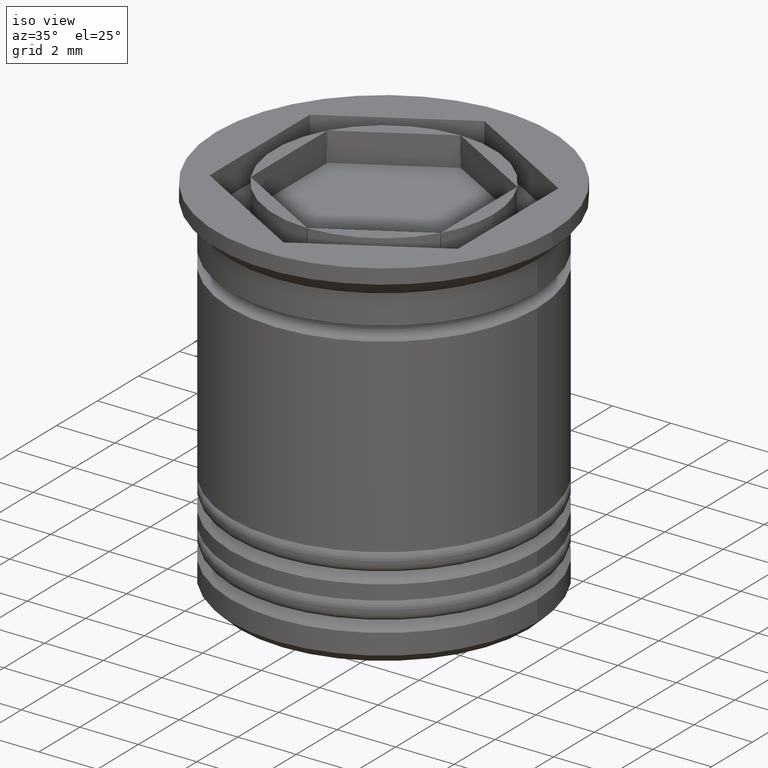
[diagram: clean part render]
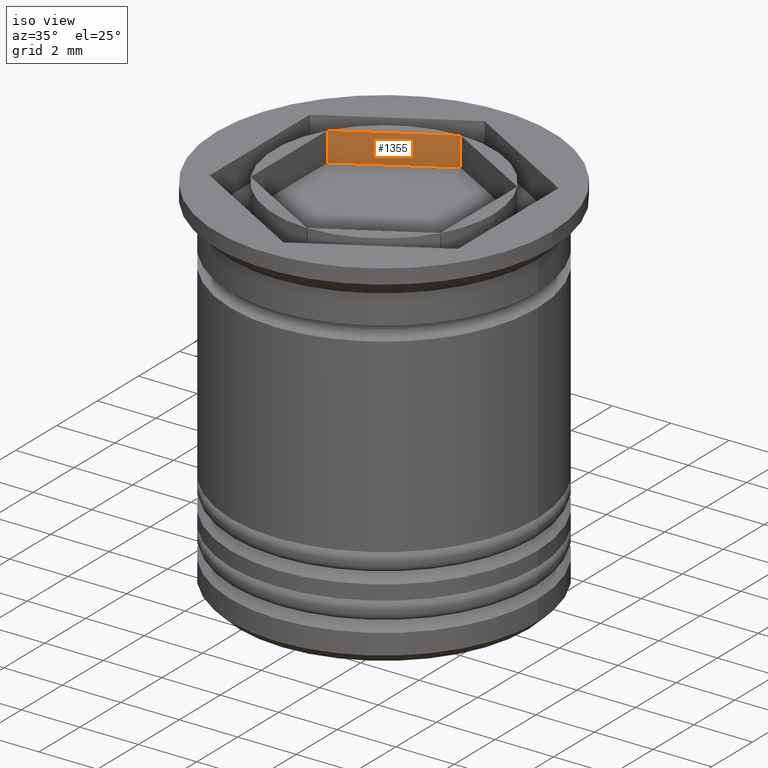
[diagram: same view with one face highlighted and labeled with its STEP entity id]
A machine part, iso view. The second image highlights one B-rep face of the part: STEP entity #1355.
In plain terms, the highlighted planar face has unit normal (-0.5, 0.866, 0).
Its self-contained STEP definition (entity closure, byte-faithful):
#31 = DIRECTION ( 'NONE',  ( -0.5000000000000000000, 0.8660254037844387076, 0.000000000000000000 ) ) ;
#41 = CARTESIAN_POINT ( 'NONE',  ( -3.245185174601964651, 1.879168215605940162, 0.000000000000000000 ) ) ;
#128 = ORIENTED_EDGE ( 'NONE', *, *, #1224, .T. ) ;
#274 = VECTOR ( 'NONE', #973, 1000.000000000000114 ) ;
#297 = VERTEX_POINT ( 'NONE', #41 ) ;
#317 = EDGE_CURVE ( 'NONE', #969, #297, #1715, .T. ) ;
#331 = CARTESIAN_POINT ( 'NONE',  ( 0.000000000000000000, 3.752776749732567030, -10.92891400573765459 ) ) ;
#334 = LINE ( 'NONE', #668, #604 ) ;
#360 = CARTESIAN_POINT ( 'NONE',  ( 0.000000000000000000, 3.752776749732567030, -1.000000000000000888 ) ) ;
#583 = EDGE_CURVE ( 'NONE', #753, #969, #1225, .T. ) ;
#604 = VECTOR ( 'NONE', #1138, 1000.000000000000000 ) ;
#668 = CARTESIAN_POINT ( 'NONE',  ( -3.245185174601965095, 1.879168215605940384, -1.000000000000000000 ) ) ;
#676 = AXIS2_PLACEMENT_3D ( 'NONE', #331, #31, #1134 ) ;
#701 = VECTOR ( 'NONE', #1678, 1000.000000000000000 ) ;
#753 = VERTEX_POINT ( 'NONE', #981 ) ;
#804 = ORIENTED_EDGE ( 'NONE', *, *, #1611, .T. ) ;
#969 = VERTEX_POINT ( 'NONE', #1310 ) ;
#973 = DIRECTION ( 'NONE',  ( -0.8660254037844385966, -0.4999999999999999445, -0.000000000000000000 ) ) ;
#981 = CARTESIAN_POINT ( 'NONE',  ( -0.004814825398034354616, 3.749996908992910605, -1.000000000000000888 ) ) ;
#983 = DIRECTION ( 'NONE',  ( 0.8660254037844385966, 0.4999999999999999445, 0.000000000000000000 ) ) ;
#1134 = DIRECTION ( 'NONE',  ( -0.8660254037844385966, -0.4999999999999999445, 0.000000000000000000 ) ) ;
#1138 = DIRECTION ( 'NONE',  ( 0.000000000000000000, 0.000000000000000000, -1.000000000000000000 ) ) ;
#1214 = VECTOR ( 'NONE', #983, 1000.000000000000114 ) ;
#1224 = EDGE_CURVE ( 'NONE', #297, #1288, #334, .T. ) ;
#1225 = LINE ( 'NONE', #1838, #701 ) ;
#1275 = LINE ( 'NONE', #360, #1214 ) ;
#1288 = VERTEX_POINT ( 'NONE', #1400 ) ;
#1310 = CARTESIAN_POINT ( 'NONE',  ( -0.004814825398034763143, 3.749996908992911493, 0.000000000000000000 ) ) ;
#1355 = ADVANCED_FACE ( 'NONE', ( #1697 ), #1408, .F. ) ;
#1400 = CARTESIAN_POINT ( 'NONE',  ( -3.245185174601965539, 1.879168215605939718, -1.000000000000000888 ) ) ;
#1408 = PLANE ( 'NONE',  #676 ) ;
#1532 = EDGE_LOOP ( 'NONE', ( #128, #804, #1713, #1836 ) ) ;
#1611 = EDGE_CURVE ( 'NONE', #1288, #753, #1275, .T. ) ;
#1678 = DIRECTION ( 'NONE',  ( -0.000000000000000000, -0.000000000000000000, 1.000000000000000000 ) ) ;
#1697 = FACE_OUTER_BOUND ( 'NONE', #1532, .T. ) ;
#1713 = ORIENTED_EDGE ( 'NONE', *, *, #583, .T. ) ;
#1715 = LINE ( 'NONE', #1849, #274 ) ;
#1836 = ORIENTED_EDGE ( 'NONE', *, *, #317, .T. ) ;
#1838 = CARTESIAN_POINT ( 'NONE',  ( -0.004814825398034546303, 3.749996908992911049, -1.000000000000000000 ) ) ;
#1849 = CARTESIAN_POINT ( 'NONE',  ( -1.625000000000000000, 2.814582562299425827, 0.000000000000000000 ) ) ;